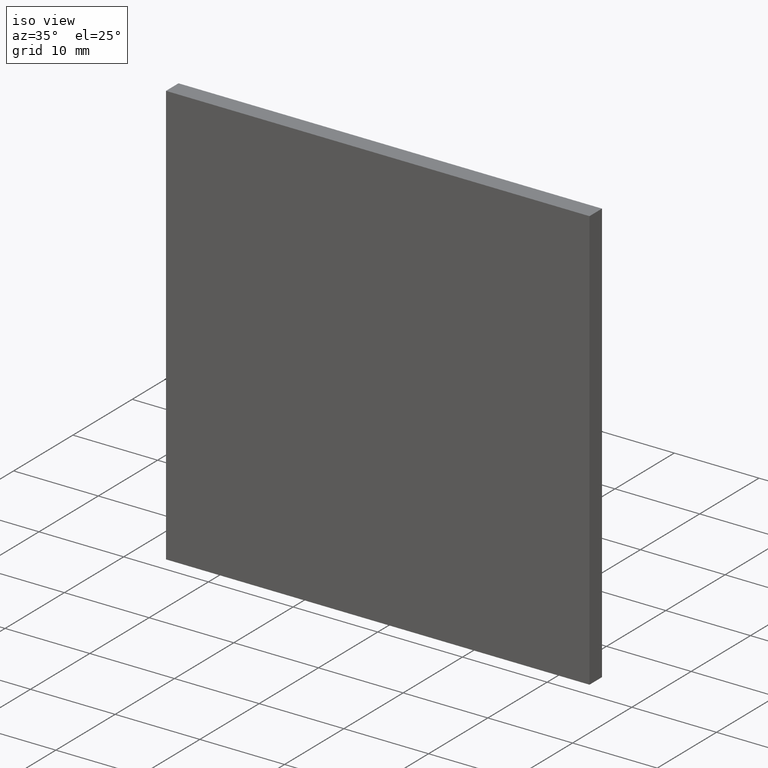
[diagram: clean part render]
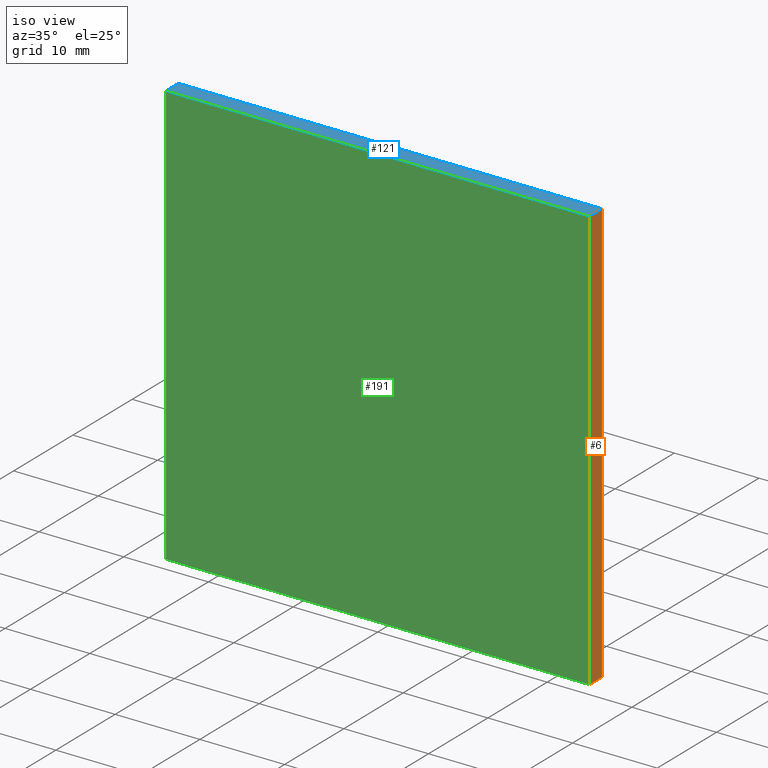
[diagram: same view with three faces highlighted in distinct colors, each labeled with its STEP entity id]
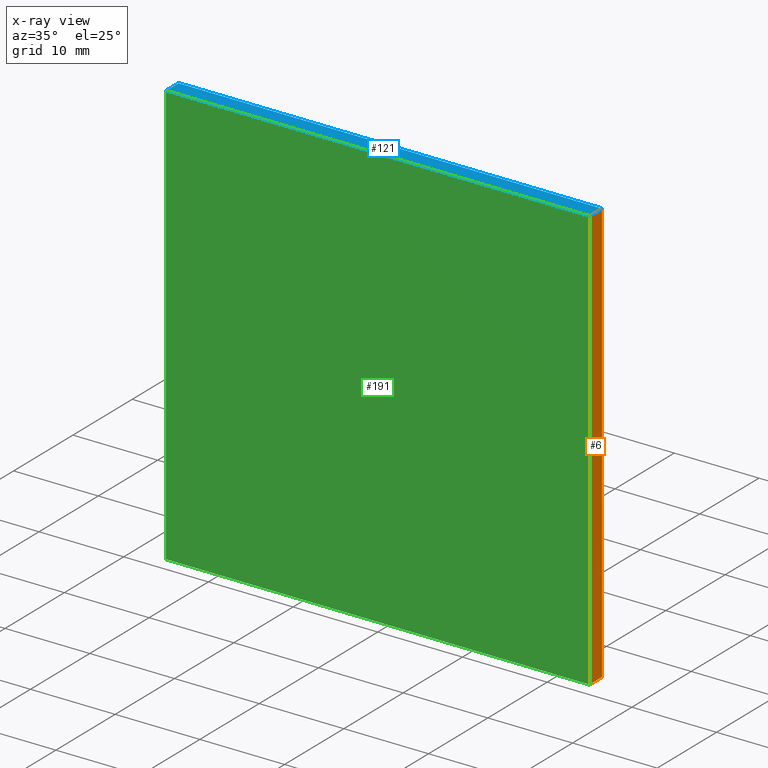
[diagram: x-ray of the same camera — body ghosted, the three highlighted faces saturated]
A machine part, iso view with three faces highlighted in distinct colors.
The next image is the same camera in x-ray (body ghosted, the three faces saturated) — at least one of them is partly hidden behind the body in this view.
Their STEP definitions:

[orange] entity #6 — the highlighted planar face has unit normal (-1, 0, 0).
#3 = VECTOR ( 'NONE', #15, 1000.000000000000000 ) ;
#5 = CARTESIAN_POINT ( 'NONE',  ( 25.00000000000000400, 2.109999999999999900, -25.00000000000000400 ) ) ;
#6 = ADVANCED_FACE ( 'NONE', ( #193 ), #197, .F. ) ;
#15 = DIRECTION ( 'NONE',  ( -0.0000000000000000000, -1.000000000000000000, -0.0000000000000000000 ) ) ;
#18 = EDGE_CURVE ( 'NONE', #159, #41, #194, .T. ) ;
#24 = EDGE_CURVE ( 'NONE', #105, #49, #35, .T. ) ;
#26 = CARTESIAN_POINT ( 'NONE',  ( 25.00000000000001100, 2.109999999999999900, 24.99999999999999600 ) ) ;
#27 = CARTESIAN_POINT ( 'NONE',  ( 25.00000000000001100, 2.109999999999999900, 24.99999999999999600 ) ) ;
#28 = CARTESIAN_POINT ( 'NONE',  ( 25.00000000000000400, 0.0000000000000000000, -25.00000000000000400 ) ) ;
#35 = LINE ( 'NONE', #128, #76 ) ;
#38 = ORIENTED_EDGE ( 'NONE', *, *, #24, .F. ) ;
#39 = EDGE_CURVE ( 'NONE', #105, #159, #52, .T. ) ;
#41 = VERTEX_POINT ( 'NONE', #141 ) ;
#44 = EDGE_LOOP ( 'NONE', ( #137, #175, #38, #164 ) ) ;
#49 = VERTEX_POINT ( 'NONE', #92 ) ;
#50 = DIRECTION ( 'NONE',  ( 1.387778780781445700E-016, 0.0000000000000000000, 1.000000000000000000 ) ) ;
#52 = LINE ( 'NONE', #26, #3 ) ;
#60 = AXIS2_PLACEMENT_3D ( 'NONE', #142, #65, #50 ) ;
#65 = DIRECTION ( 'NONE',  ( -1.000000000000000000, 0.0000000000000000000, 1.387778780781445700E-016 ) ) ;
#68 = CARTESIAN_POINT ( 'NONE',  ( 25.00000000000001100, 0.0000000000000000000, 24.99999999999999600 ) ) ;
#75 = DIRECTION ( 'NONE',  ( -1.387778780781445700E-016, -0.0000000000000000000, -1.000000000000000000 ) ) ;
#76 = VECTOR ( 'NONE', #75, 1000.000000000000000 ) ;
#84 = VECTOR ( 'NONE', #202, 1000.000000000000000 ) ;
#92 = CARTESIAN_POINT ( 'NONE',  ( 25.00000000000000400, 2.109999999999999900, -25.00000000000000400 ) ) ;
#105 = VERTEX_POINT ( 'NONE', #27 ) ;
#111 = VECTOR ( 'NONE', #179, 1000.000000000000000 ) ;
#128 = CARTESIAN_POINT ( 'NONE',  ( 25.00000000000000400, 2.109999999999999900, -25.00000000000000400 ) ) ;
#134 = EDGE_CURVE ( 'NONE', #49, #41, #136, .T. ) ;
#136 = LINE ( 'NONE', #5, #111 ) ;
#137 = ORIENTED_EDGE ( 'NONE', *, *, #18, .T. ) ;
#141 = CARTESIAN_POINT ( 'NONE',  ( 25.00000000000000400, 0.0000000000000000000, -25.00000000000000400 ) ) ;
#142 = CARTESIAN_POINT ( 'NONE',  ( 25.00000000000000400, 2.109999999999999900, -25.00000000000000400 ) ) ;
#159 = VERTEX_POINT ( 'NONE', #68 ) ;
#164 = ORIENTED_EDGE ( 'NONE', *, *, #39, .T. ) ;
#175 = ORIENTED_EDGE ( 'NONE', *, *, #134, .F. ) ;
#179 = DIRECTION ( 'NONE',  ( -0.0000000000000000000, -1.000000000000000000, -0.0000000000000000000 ) ) ;
#193 = FACE_OUTER_BOUND ( 'NONE', #44, .T. ) ;
#194 = LINE ( 'NONE', #28, #84 ) ;
#197 = PLANE ( 'NONE',  #60 ) ;
#202 = DIRECTION ( 'NONE',  ( -1.387778780781445700E-016, -0.0000000000000000000, -1.000000000000000000 ) ) ;

[blue] entity #121 — the highlighted planar face has unit normal (0, 0, -1).
#3 = VECTOR ( 'NONE', #15, 1000.000000000000000 ) ;
#10 = VERTEX_POINT ( 'NONE', #183 ) ;
#15 = DIRECTION ( 'NONE',  ( -0.0000000000000000000, -1.000000000000000000, -0.0000000000000000000 ) ) ;
#23 = PLANE ( 'NONE',  #122 ) ;
#26 = CARTESIAN_POINT ( 'NONE',  ( 25.00000000000001100, 2.109999999999999900, 24.99999999999999600 ) ) ;
#27 = CARTESIAN_POINT ( 'NONE',  ( 25.00000000000001100, 2.109999999999999900, 24.99999999999999600 ) ) ;
#36 = VECTOR ( 'NONE', #120, 1000.000000000000000 ) ;
#39 = EDGE_CURVE ( 'NONE', #105, #159, #52, .T. ) ;
#42 = EDGE_LOOP ( 'NONE', ( #86, #125, #59, #165 ) ) ;
#52 = LINE ( 'NONE', #26, #3 ) ;
#54 = VECTOR ( 'NONE', #174, 1000.000000000000000 ) ;
#59 = ORIENTED_EDGE ( 'NONE', *, *, #66, .F. ) ;
#63 = CARTESIAN_POINT ( 'NONE',  ( -24.99999999999999300, 2.109999999999999900, 24.99999999999999600 ) ) ;
#66 = EDGE_CURVE ( 'NONE', #89, #105, #166, .T. ) ;
#68 = CARTESIAN_POINT ( 'NONE',  ( 25.00000000000001100, 0.0000000000000000000, 24.99999999999999600 ) ) ;
#72 = EDGE_CURVE ( 'NONE', #10, #159, #126, .T. ) ;
#74 = CARTESIAN_POINT ( 'NONE',  ( -24.99999999999999300, 0.0000000000000000000, 24.99999999999999600 ) ) ;
#86 = ORIENTED_EDGE ( 'NONE', *, *, #72, .T. ) ;
#89 = VERTEX_POINT ( 'NONE', #63 ) ;
#90 = DIRECTION ( 'NONE',  ( 1.000000000000000000, 0.0000000000000000000, 0.0000000000000000000 ) ) ;
#93 = CARTESIAN_POINT ( 'NONE',  ( -24.99999999999999300, 2.109999999999999900, 24.99999999999999600 ) ) ;
#94 = LINE ( 'NONE', #93, #54 ) ;
#105 = VERTEX_POINT ( 'NONE', #27 ) ;
#106 = FACE_OUTER_BOUND ( 'NONE', #42, .T. ) ;
#110 = CARTESIAN_POINT ( 'NONE',  ( -24.99999999999999300, 2.109999999999999900, 24.99999999999999600 ) ) ;
#120 = DIRECTION ( 'NONE',  ( 1.000000000000000000, 0.0000000000000000000, 0.0000000000000000000 ) ) ;
#121 = ADVANCED_FACE ( 'NONE', ( #106 ), #23, .F. ) ;
#122 = AXIS2_PLACEMENT_3D ( 'NONE', #140, #157, #198 ) ;
#125 = ORIENTED_EDGE ( 'NONE', *, *, #39, .F. ) ;
#126 = LINE ( 'NONE', #74, #161 ) ;
#140 = CARTESIAN_POINT ( 'NONE',  ( -24.99999999999999300, 2.109999999999999900, 24.99999999999999600 ) ) ;
#151 = EDGE_CURVE ( 'NONE', #89, #10, #94, .T. ) ;
#157 = DIRECTION ( 'NONE',  ( 0.0000000000000000000, 0.0000000000000000000, -1.000000000000000000 ) ) ;
#159 = VERTEX_POINT ( 'NONE', #68 ) ;
#161 = VECTOR ( 'NONE', #90, 1000.000000000000000 ) ;
#165 = ORIENTED_EDGE ( 'NONE', *, *, #151, .T. ) ;
#166 = LINE ( 'NONE', #110, #36 ) ;
#174 = DIRECTION ( 'NONE',  ( -0.0000000000000000000, -1.000000000000000000, -0.0000000000000000000 ) ) ;
#183 = CARTESIAN_POINT ( 'NONE',  ( -24.99999999999999300, 0.0000000000000000000, 24.99999999999999600 ) ) ;
#198 = DIRECTION ( 'NONE',  ( -1.000000000000000000, 0.0000000000000000000, -0.0000000000000000000 ) ) ;

[green] entity #191 — the highlighted planar face has unit normal (0, 1, 0).
#10 = VERTEX_POINT ( 'NONE', #183 ) ;
#18 = EDGE_CURVE ( 'NONE', #159, #41, #194, .T. ) ;
#28 = CARTESIAN_POINT ( 'NONE',  ( 25.00000000000000400, 0.0000000000000000000, -25.00000000000000400 ) ) ;
#31 = DIRECTION ( 'NONE',  ( -1.000000000000000000, -0.0000000000000000000, -0.0000000000000000000 ) ) ;
#41 = VERTEX_POINT ( 'NONE', #141 ) ;
#43 = VECTOR ( 'NONE', #31, 1000.000000000000000 ) ;
#47 = VERTEX_POINT ( 'NONE', #131 ) ;
#55 = ORIENTED_EDGE ( 'NONE', *, *, #72, .F. ) ;
#61 = VECTOR ( 'NONE', #79, 1000.000000000000000 ) ;
#68 = CARTESIAN_POINT ( 'NONE',  ( 25.00000000000001100, 0.0000000000000000000, 24.99999999999999600 ) ) ;
#72 = EDGE_CURVE ( 'NONE', #10, #159, #126, .T. ) ;
#74 = CARTESIAN_POINT ( 'NONE',  ( -24.99999999999999300, 0.0000000000000000000, 24.99999999999999600 ) ) ;
#79 = DIRECTION ( 'NONE',  ( 6.938893903907228400E-017, 0.0000000000000000000, 1.000000000000000000 ) ) ;
#83 = CARTESIAN_POINT ( 'NONE',  ( -24.99999999999999600, 0.0000000000000000000, -25.00000000000000400 ) ) ;
#84 = VECTOR ( 'NONE', #202, 1000.000000000000000 ) ;
#90 = DIRECTION ( 'NONE',  ( 1.000000000000000000, 0.0000000000000000000, 0.0000000000000000000 ) ) ;
#108 = FACE_OUTER_BOUND ( 'NONE', #158, .T. ) ;
#113 = DIRECTION ( 'NONE',  ( 0.0000000000000000000, -0.0000000000000000000, 1.000000000000000000 ) ) ;
#116 = CARTESIAN_POINT ( 'NONE',  ( 0.0000000000000000000, 0.0000000000000000000, 0.0000000000000000000 ) ) ;
#118 = CARTESIAN_POINT ( 'NONE',  ( -24.99999999999999600, 0.0000000000000000000, -25.00000000000000400 ) ) ;
#119 = LINE ( 'NONE', #118, #43 ) ;
#123 = ORIENTED_EDGE ( 'NONE', *, *, #18, .F. ) ;
#124 = LINE ( 'NONE', #83, #61 ) ;
#126 = LINE ( 'NONE', #74, #161 ) ;
#131 = CARTESIAN_POINT ( 'NONE',  ( -24.99999999999999600, 0.0000000000000000000, -25.00000000000000400 ) ) ;
#141 = CARTESIAN_POINT ( 'NONE',  ( 25.00000000000000400, 0.0000000000000000000, -25.00000000000000400 ) ) ;
#158 = EDGE_LOOP ( 'NONE', ( #123, #55, #178, #169 ) ) ;
#159 = VERTEX_POINT ( 'NONE', #68 ) ;
#161 = VECTOR ( 'NONE', #90, 1000.000000000000000 ) ;
#169 = ORIENTED_EDGE ( 'NONE', *, *, #177, .F. ) ;
#173 = AXIS2_PLACEMENT_3D ( 'NONE', #116, #185, #113 ) ;
#177 = EDGE_CURVE ( 'NONE', #41, #47, #119, .T. ) ;
#178 = ORIENTED_EDGE ( 'NONE', *, *, #192, .F. ) ;
#183 = CARTESIAN_POINT ( 'NONE',  ( -24.99999999999999300, 0.0000000000000000000, 24.99999999999999600 ) ) ;
#185 = DIRECTION ( 'NONE',  ( 0.0000000000000000000, 1.000000000000000000, 0.0000000000000000000 ) ) ;
#186 = PLANE ( 'NONE',  #173 ) ;
#191 = ADVANCED_FACE ( 'NONE', ( #108 ), #186, .F. ) ;
#192 = EDGE_CURVE ( 'NONE', #47, #10, #124, .T. ) ;
#194 = LINE ( 'NONE', #28, #84 ) ;
#202 = DIRECTION ( 'NONE',  ( -1.387778780781445700E-016, -0.0000000000000000000, -1.000000000000000000 ) ) ;